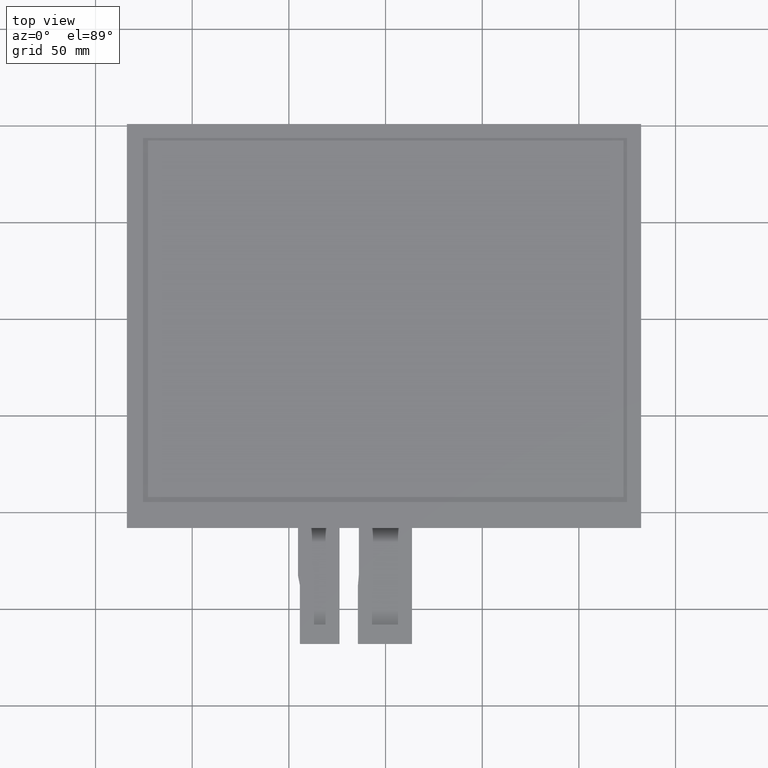
[diagram: clean part render]
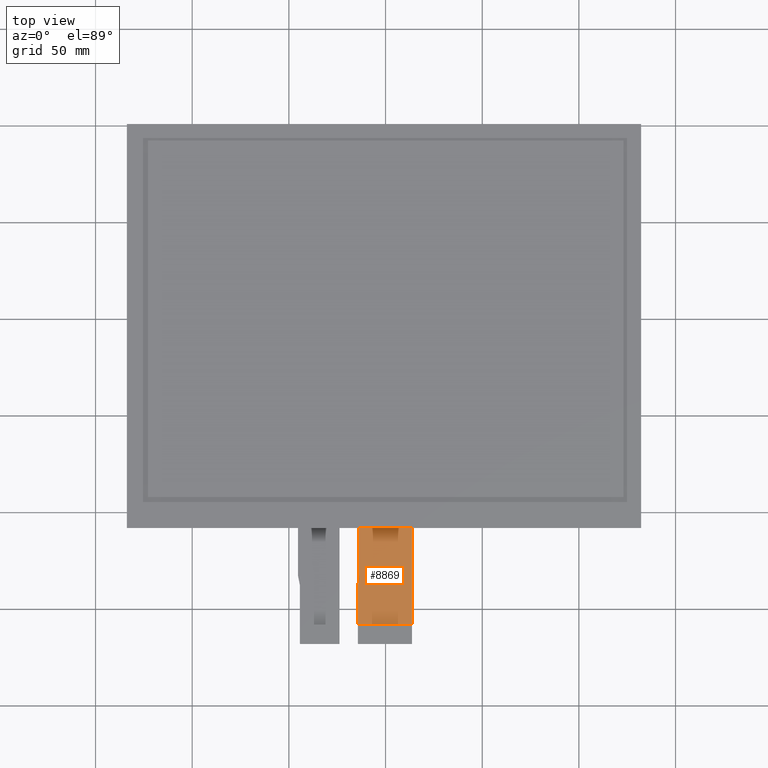
[diagram: same view with one face highlighted and labeled with its STEP entity id]
A machine part, top view. The second image highlights one B-rep face of the part: STEP entity #8869.
In plain terms, the highlighted planar face has unit normal (0, 0, 1).
Its self-contained STEP definition (entity closure, byte-faithful):
#531=PLANE('',#9319);
#953=FACE_OUTER_BOUND('',#1375,.T.);
#1375=EDGE_LOOP('',(#8351,#8352,#8353,#8354,#8355,#8356));
#1803=LINE('',#12268,#3043);
#2583=LINE('',#13828,#3823);
#2586=LINE('',#13833,#3826);
#2590=LINE('',#13843,#3830);
#2594=LINE('',#13850,#3834);
#2596=LINE('',#13853,#3836);
#3043=VECTOR('',#9779,10.);
#3823=VECTOR('',#11331,10.);
#3826=VECTOR('',#11336,10.);
#3830=VECTOR('',#11346,10.);
#3834=VECTOR('',#11352,10.);
#3836=VECTOR('',#11356,10.);
#4292=VERTEX_POINT('',#12265);
#4293=VERTEX_POINT('',#12267);
#4686=VERTEX_POINT('',#13825);
#4687=VERTEX_POINT('',#13827);
#4690=VERTEX_POINT('',#13841);
#4691=VERTEX_POINT('',#13842);
#5131=EDGE_CURVE('',#4293,#4292,#1803,.T.);
#5911=EDGE_CURVE('',#4687,#4686,#2583,.T.);
#5914=EDGE_CURVE('',#4686,#4293,#2586,.T.);
#5918=EDGE_CURVE('',#4690,#4691,#2590,.T.);
#5922=EDGE_CURVE('',#4691,#4687,#2594,.T.);
#5924=EDGE_CURVE('',#4690,#4292,#2596,.T.);
#8351=ORIENTED_EDGE('',*,*,#5914,.T.);
#8352=ORIENTED_EDGE('',*,*,#5131,.T.);
#8353=ORIENTED_EDGE('',*,*,#5924,.F.);
#8354=ORIENTED_EDGE('',*,*,#5918,.T.);
#8355=ORIENTED_EDGE('',*,*,#5922,.T.);
#8356=ORIENTED_EDGE('',*,*,#5911,.T.);
#8869=ADVANCED_FACE('',(#953),#531,.T.);
#9319=AXIS2_PLACEMENT_3D('',#13852,#11354,#11355);
#9779=DIRECTION('',(1.99840144432528E-15,1.,0.));
#11331=DIRECTION('',(0.,-1.,0.));
#11336=DIRECTION('',(1.,0.,0.));
#11346=DIRECTION('',(9.25185853854298E-17,-1.,0.));
#11352=DIRECTION('',(-0.0858883421530333,-0.996304768974938,0.));
#11354=DIRECTION('center_axis',(0.,0.,1.));
#11355=DIRECTION('ref_axis',(1.,0.,0.));
#11356=DIRECTION('',(1.,2.0034099692484E-16,0.));
#12265=CARTESIAN_POINT('',(13.7000000000001,-108.05,-1.1));
#12267=CARTESIAN_POINT('',(13.7,-158.05,-1.1));
#12268=CARTESIAN_POINT('',(13.7,-168.05,-1.1));
#13825=CARTESIAN_POINT('',(-14.3,-158.05,-1.1));
#13827=CARTESIAN_POINT('',(-14.3,-137.85,-1.1));
#13828=CARTESIAN_POINT('',(-14.3,-137.85,-1.1));
#13833=CARTESIAN_POINT('',(6.70000000000004,-158.05,-1.1));
#13841=CARTESIAN_POINT('',(-13.7999999999999,-108.05,-1.1));
#13842=CARTESIAN_POINT('',(-13.7999999999999,-132.05,-1.1));
#13843=CARTESIAN_POINT('',(-13.7999999999999,-108.05,-1.1));
#13850=CARTESIAN_POINT('',(-13.7999999999999,-132.05,-1.1));
#13852=CARTESIAN_POINT('Origin',(-0.299999999999927,-138.05,-1.1));
#13853=CARTESIAN_POINT('',(65.95,-108.05,-1.1));